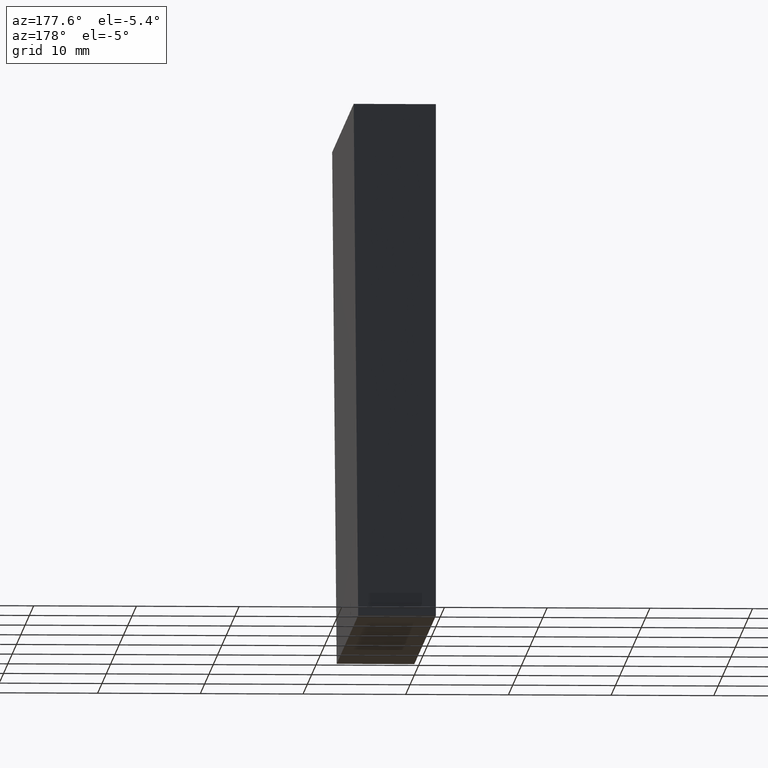
[diagram: clean part render]
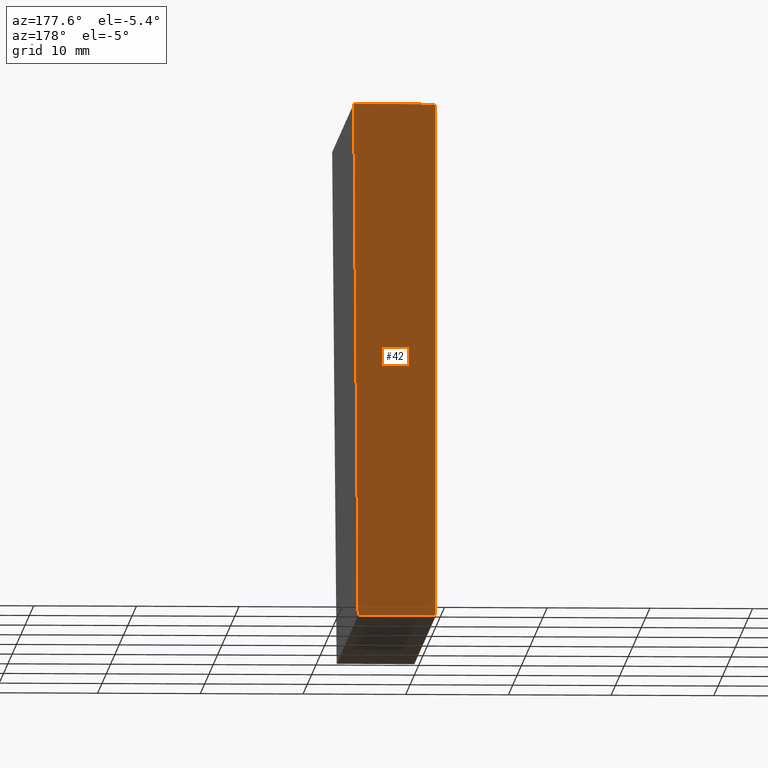
[diagram: same view with one face highlighted and labeled with its STEP entity id]
A machine part, auxiliary view. The second image highlights one B-rep face of the part: STEP entity #42.
In plain terms, the highlighted planar face has unit normal (0, -1, 0).
Its self-contained STEP definition (entity closure, byte-faithful):
#7 = VERTEX_POINT ( 'NONE', #145 ) ;
#8 = DIRECTION ( 'NONE',  ( 1.000000000000000000, 0.0000000000000000000, 0.0000000000000000000 ) ) ;
#13 = VERTEX_POINT ( 'NONE', #35 ) ;
#22 = VERTEX_POINT ( 'NONE', #183 ) ;
#34 = LINE ( 'NONE', #157, #189 ) ;
#35 = CARTESIAN_POINT ( 'NONE',  ( 8.000000000000005300, 50.00000000000000000, 25.00000000000000000 ) ) ;
#36 = DIRECTION ( 'NONE',  ( 0.0000000000000000000, 0.0000000000000000000, 1.000000000000000000 ) ) ;
#42 = ADVANCED_FACE ( 'NONE', ( #137 ), #147, .F. ) ;
#44 = ORIENTED_EDGE ( 'NONE', *, *, #73, .T. ) ;
#46 = CARTESIAN_POINT ( 'NONE',  ( 5.204170427930421300E-015, 50.00000000000000000, -25.00000000000000000 ) ) ;
#47 = CARTESIAN_POINT ( 'NONE',  ( 8.000000000000005300, 50.00000000000000000, 25.00000000000000000 ) ) ;
#56 = EDGE_CURVE ( 'NONE', #7, #13, #105, .T. ) ;
#58 = VERTEX_POINT ( 'NONE', #124 ) ;
#61 = DIRECTION ( 'NONE',  ( -1.000000000000000000, -0.0000000000000000000, -0.0000000000000000000 ) ) ;
#73 = EDGE_CURVE ( 'NONE', #13, #22, #117, .T. ) ;
#76 = VECTOR ( 'NONE', #8, 1000.000000000000000 ) ;
#92 = ORIENTED_EDGE ( 'NONE', *, *, #136, .T. ) ;
#94 = ORIENTED_EDGE ( 'NONE', *, *, #132, .T. ) ;
#97 = CARTESIAN_POINT ( 'NONE',  ( 5.204170427930421300E-015, 50.00000000000000000, 25.00000000000000000 ) ) ;
#104 = ORIENTED_EDGE ( 'NONE', *, *, #56, .T. ) ;
#105 = LINE ( 'NONE', #97, #76 ) ;
#106 = VECTOR ( 'NONE', #36, 1000.000000000000000 ) ;
#110 = DIRECTION ( 'NONE',  ( 0.0000000000000000000, -0.0000000000000000000, -1.000000000000000000 ) ) ;
#117 = LINE ( 'NONE', #47, #155 ) ;
#118 = AXIS2_PLACEMENT_3D ( 'NONE', #128, #144, #110 ) ;
#124 = CARTESIAN_POINT ( 'NONE',  ( 5.204170427930421300E-015, 50.00000000000000000, -25.00000000000000000 ) ) ;
#128 = CARTESIAN_POINT ( 'NONE',  ( 0.0000000000000000000, 50.00000000000000000, 0.0000000000000000000 ) ) ;
#131 = EDGE_LOOP ( 'NONE', ( #94, #92, #104, #44 ) ) ;
#132 = EDGE_CURVE ( 'NONE', #22, #58, #34, .T. ) ;
#136 = EDGE_CURVE ( 'NONE', #58, #7, #180, .T. ) ;
#137 = FACE_OUTER_BOUND ( 'NONE', #131, .T. ) ;
#144 = DIRECTION ( 'NONE',  ( 0.0000000000000000000, -1.000000000000000000, 0.0000000000000000000 ) ) ;
#145 = CARTESIAN_POINT ( 'NONE',  ( 5.204170427930421300E-015, 50.00000000000000000, 25.00000000000000000 ) ) ;
#147 = PLANE ( 'NONE',  #118 ) ;
#155 = VECTOR ( 'NONE', #179, 1000.000000000000200 ) ;
#157 = CARTESIAN_POINT ( 'NONE',  ( 5.204170427930421300E-015, 50.00000000000000000, -25.00000000000000000 ) ) ;
#179 = DIRECTION ( 'NONE',  ( -0.008726535498366983600, 0.0000000000000000000, -0.9999619230641713100 ) ) ;
#180 = LINE ( 'NONE', #46, #106 ) ;
#183 = CARTESIAN_POINT ( 'NONE',  ( 7.563656610462413900, 50.00000000000000000, -25.00000000000000000 ) ) ;
#189 = VECTOR ( 'NONE', #61, 1000.000000000000000 ) ;